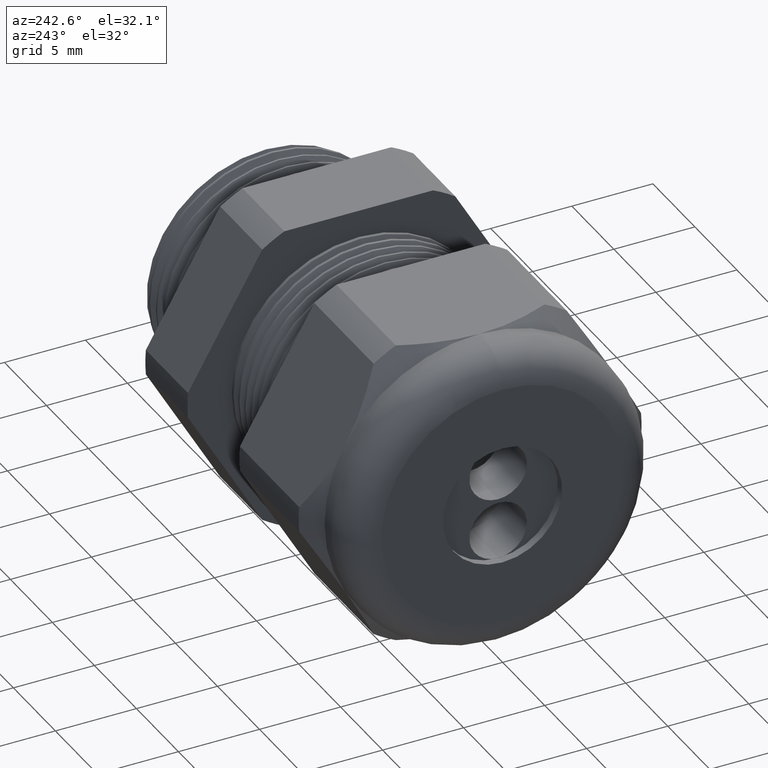
[diagram: clean part render]
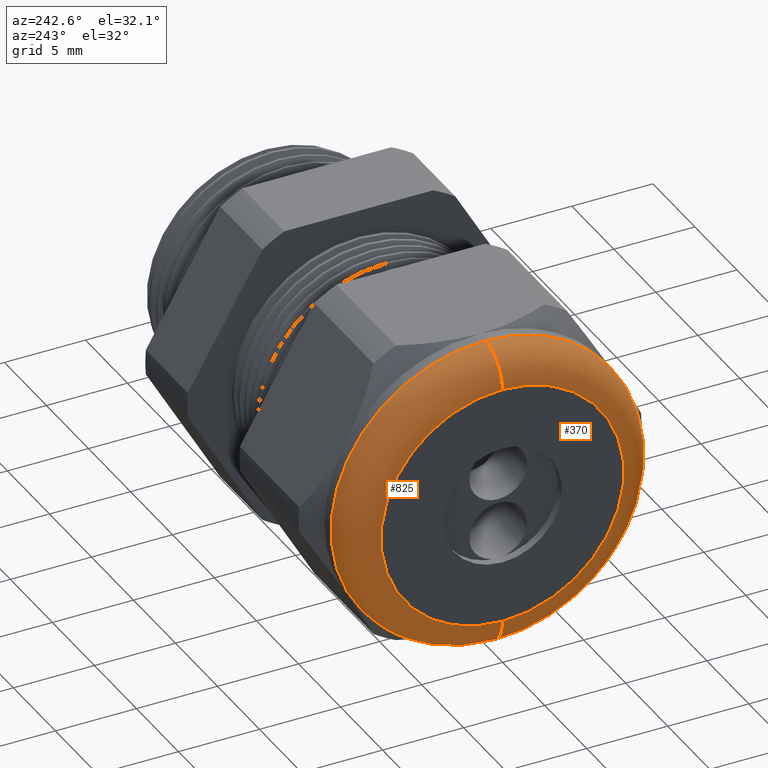
[diagram: same view with one multi-face feature highlighted, each face labeled with its STEP entity id]
A machine part, auxiliary view. The highlighted faces form ONE feature: a constant-radius fillet chain: 2 tangent blend faces with common blend radius 2.032 mm. The faces share edges in the B-rep.
Their STEP definitions:
[1] entity #825 (Torus):
#825 = ADVANCED_FACE ( 'NONE', ( #2328 ), #2327, .T. ) ;
#826 = EDGE_LOOP ( 'NONE', ( #827, #878, #889, #944 ) ) ;
#827 = ORIENTED_EDGE ( 'NONE', *, *, #828, .F. ) ;
#828 = EDGE_CURVE ( 'NONE', #829, #877, #2386, .T. ) ;
#829 = VERTEX_POINT ( 'NONE', #2381 ) ;
#877 = VERTEX_POINT ( 'NONE', #2477 ) ;
#878 = ORIENTED_EDGE ( 'NONE', *, *, #879, .T. ) ;
#879 = EDGE_CURVE ( 'NONE', #829, #880, #2476, .T. ) ;
#880 = VERTEX_POINT ( 'NONE', #2471 ) ;
#889 = ORIENTED_EDGE ( 'NONE', *, *, #890, .F. ) ;
#890 = EDGE_CURVE ( 'NONE', #891, #880, #2459, .T. ) ;
#891 = VERTEX_POINT ( 'NONE', #2454 ) ;
#944 = ORIENTED_EDGE ( 'NONE', *, *, #945, .F. ) ;
#945 = EDGE_CURVE ( 'NONE', #877, #891, #2595, .T. ) ;
#1045 = AXIS2_PLACEMENT_3D ( 'NONE', #1819, #2077, #2076 ) ;
#1819 = CARTESIAN_POINT ( 'NONE',  ( -1.099999999999999900, 0.0000000000000000000, 0.0000000000000000000 ) ) ;
#2076 = DIRECTION ( 'NONE',  ( 0.0000000000000000000, 0.0000000000000000000, 1.000000000000000000 ) ) ;
#2077 = DIRECTION ( 'NONE',  ( -1.000000000000000000, 0.0000000000000000000, 0.0000000000000000000 ) ) ;
#2327 = TOROIDAL_SURFACE ( 'NONE', #1045, 0.2950000000000000400, 0.08000000000000000200 ) ;
#2328 = FACE_OUTER_BOUND ( 'NONE', #826, .T. ) ;
#2381 = CARTESIAN_POINT ( 'NONE',  ( -1.099999999999999900, 0.0000000000000000000, -0.3750000000000000600 ) ) ;
#2382 = DIRECTION ( 'NONE',  ( 0.0000000000000000000, 0.0000000000000000000, 1.000000000000000000 ) ) ;
#2383 = DIRECTION ( 'NONE',  ( 1.000000000000000000, 0.0000000000000000000, 0.0000000000000000000 ) ) ;
#2384 = CARTESIAN_POINT ( 'NONE',  ( -1.099999999999999900, 0.0000000000000000000, 0.0000000000000000000 ) ) ;
#2385 = AXIS2_PLACEMENT_3D ( 'NONE', #2384, #2383, #2382 ) ;
#2386 = CIRCLE ( 'NONE', #2385, 0.3750000000000000600 ) ;
#2454 = CARTESIAN_POINT ( 'NONE',  ( -1.179999999999999900, 0.0000000000000000000, 0.2950000000000000400 ) ) ;
#2455 = DIRECTION ( 'NONE',  ( 0.0000000000000000000, 0.0000000000000000000, 1.000000000000000000 ) ) ;
#2456 = DIRECTION ( 'NONE',  ( -1.000000000000000000, 0.0000000000000000000, 0.0000000000000000000 ) ) ;
#2457 = CARTESIAN_POINT ( 'NONE',  ( -1.179999999999999900, 0.0000000000000000000, 0.0000000000000000000 ) ) ;
#2458 = AXIS2_PLACEMENT_3D ( 'NONE', #2457, #2456, #2455 ) ;
#2459 = CIRCLE ( 'NONE', #2458, 0.2950000000000000400 ) ;
#2471 = CARTESIAN_POINT ( 'NONE',  ( -1.179999999999999900, 4.102566777143634000E-017, -0.2950000000000000400 ) ) ;
#2472 = DIRECTION ( 'NONE',  ( 0.0000000000000000000, -1.224646799147353500E-016, 1.000000000000000000 ) ) ;
#2473 = DIRECTION ( 'NONE',  ( 0.0000000000000000000, 1.000000000000000000, 1.224646799147353200E-016 ) ) ;
#2474 = CARTESIAN_POINT ( 'NONE',  ( -1.099999999999999900, 3.612708057484692600E-017, -0.2950000000000000400 ) ) ;
#2475 = AXIS2_PLACEMENT_3D ( 'NONE', #2474, #2473, #2472 ) ;
#2476 = CIRCLE ( 'NONE', #2475, 0.08000000000000000200 ) ;
#2477 = CARTESIAN_POINT ( 'NONE',  ( -1.099999999999999900, 4.592425496802575500E-017, 0.3750000000000000600 ) ) ;
#2591 = DIRECTION ( 'NONE',  ( 0.0000000000000000000, 0.0000000000000000000, -1.000000000000000000 ) ) ;
#2592 = DIRECTION ( 'NONE',  ( 0.0000000000000000000, -1.000000000000000000, 0.0000000000000000000 ) ) ;
#2593 = CARTESIAN_POINT ( 'NONE',  ( -1.099999999999999900, 0.0000000000000000000, 0.2950000000000000400 ) ) ;
#2594 = AXIS2_PLACEMENT_3D ( 'NONE', #2593, #2592, #2591 ) ;
#2595 = CIRCLE ( 'NONE', #2594, 0.08000000000000000200 ) ;
[2] entity #370 (Torus):
#162 = EDGE_CURVE ( 'NONE', #877, #829, #1278, .T. ) ;
#227 = EDGE_CURVE ( 'NONE', #880, #891, #1410, .T. ) ;
#317 = EDGE_LOOP ( 'NONE', ( #371, #372, #373, #374 ) ) ;
#370 = ADVANCED_FACE ( 'NONE', ( #1600 ), #1599, .T. ) ;
#371 = ORIENTED_EDGE ( 'NONE', *, *, #879, .F. ) ;
#372 = ORIENTED_EDGE ( 'NONE', *, *, #162, .F. ) ;
#373 = ORIENTED_EDGE ( 'NONE', *, *, #945, .T. ) ;
#374 = ORIENTED_EDGE ( 'NONE', *, *, #227, .F. ) ;
#829 = VERTEX_POINT ( 'NONE', #2381 ) ;
#877 = VERTEX_POINT ( 'NONE', #2477 ) ;
#879 = EDGE_CURVE ( 'NONE', #829, #880, #2476, .T. ) ;
#880 = VERTEX_POINT ( 'NONE', #2471 ) ;
#891 = VERTEX_POINT ( 'NONE', #2454 ) ;
#945 = EDGE_CURVE ( 'NONE', #877, #891, #2595, .T. ) ;
#1274 = DIRECTION ( 'NONE',  ( 0.0000000000000000000, 0.0000000000000000000, 1.000000000000000000 ) ) ;
#1275 = DIRECTION ( 'NONE',  ( 1.000000000000000000, 0.0000000000000000000, 0.0000000000000000000 ) ) ;
#1276 = CARTESIAN_POINT ( 'NONE',  ( -1.099999999999999900, 0.0000000000000000000, 0.0000000000000000000 ) ) ;
#1277 = AXIS2_PLACEMENT_3D ( 'NONE', #1276, #1275, #1274 ) ;
#1278 = CIRCLE ( 'NONE', #1277, 0.3750000000000000600 ) ;
#1406 = DIRECTION ( 'NONE',  ( 0.0000000000000000000, 0.0000000000000000000, 1.000000000000000000 ) ) ;
#1407 = DIRECTION ( 'NONE',  ( -1.000000000000000000, 0.0000000000000000000, 0.0000000000000000000 ) ) ;
#1408 = CARTESIAN_POINT ( 'NONE',  ( -1.179999999999999900, 0.0000000000000000000, 0.0000000000000000000 ) ) ;
#1409 = AXIS2_PLACEMENT_3D ( 'NONE', #1408, #1407, #1406 ) ;
#1410 = CIRCLE ( 'NONE', #1409, 0.2950000000000000400 ) ;
#1595 = DIRECTION ( 'NONE',  ( 0.0000000000000000000, 0.0000000000000000000, 1.000000000000000000 ) ) ;
#1596 = DIRECTION ( 'NONE',  ( -1.000000000000000000, 0.0000000000000000000, 0.0000000000000000000 ) ) ;
#1597 = AXIS2_PLACEMENT_3D ( 'NONE', #1604, #1596, #1595 ) ;
#1599 = TOROIDAL_SURFACE ( 'NONE', #1597, 0.2950000000000000400, 0.08000000000000000200 ) ;
#1600 = FACE_OUTER_BOUND ( 'NONE', #317, .T. ) ;
#1604 = CARTESIAN_POINT ( 'NONE',  ( -1.099999999999999900, 0.0000000000000000000, 0.0000000000000000000 ) ) ;
#2381 = CARTESIAN_POINT ( 'NONE',  ( -1.099999999999999900, 0.0000000000000000000, -0.3750000000000000600 ) ) ;
#2454 = CARTESIAN_POINT ( 'NONE',  ( -1.179999999999999900, 0.0000000000000000000, 0.2950000000000000400 ) ) ;
#2471 = CARTESIAN_POINT ( 'NONE',  ( -1.179999999999999900, 4.102566777143634000E-017, -0.2950000000000000400 ) ) ;
#2472 = DIRECTION ( 'NONE',  ( 0.0000000000000000000, -1.224646799147353500E-016, 1.000000000000000000 ) ) ;
#2473 = DIRECTION ( 'NONE',  ( 0.0000000000000000000, 1.000000000000000000, 1.224646799147353200E-016 ) ) ;
#2474 = CARTESIAN_POINT ( 'NONE',  ( -1.099999999999999900, 3.612708057484692600E-017, -0.2950000000000000400 ) ) ;
#2475 = AXIS2_PLACEMENT_3D ( 'NONE', #2474, #2473, #2472 ) ;
#2476 = CIRCLE ( 'NONE', #2475, 0.08000000000000000200 ) ;
#2477 = CARTESIAN_POINT ( 'NONE',  ( -1.099999999999999900, 4.592425496802575500E-017, 0.3750000000000000600 ) ) ;
#2591 = DIRECTION ( 'NONE',  ( 0.0000000000000000000, 0.0000000000000000000, -1.000000000000000000 ) ) ;
#2592 = DIRECTION ( 'NONE',  ( 0.0000000000000000000, -1.000000000000000000, 0.0000000000000000000 ) ) ;
#2593 = CARTESIAN_POINT ( 'NONE',  ( -1.099999999999999900, 0.0000000000000000000, 0.2950000000000000400 ) ) ;
#2594 = AXIS2_PLACEMENT_3D ( 'NONE', #2593, #2592, #2591 ) ;
#2595 = CIRCLE ( 'NONE', #2594, 0.08000000000000000200 ) ;